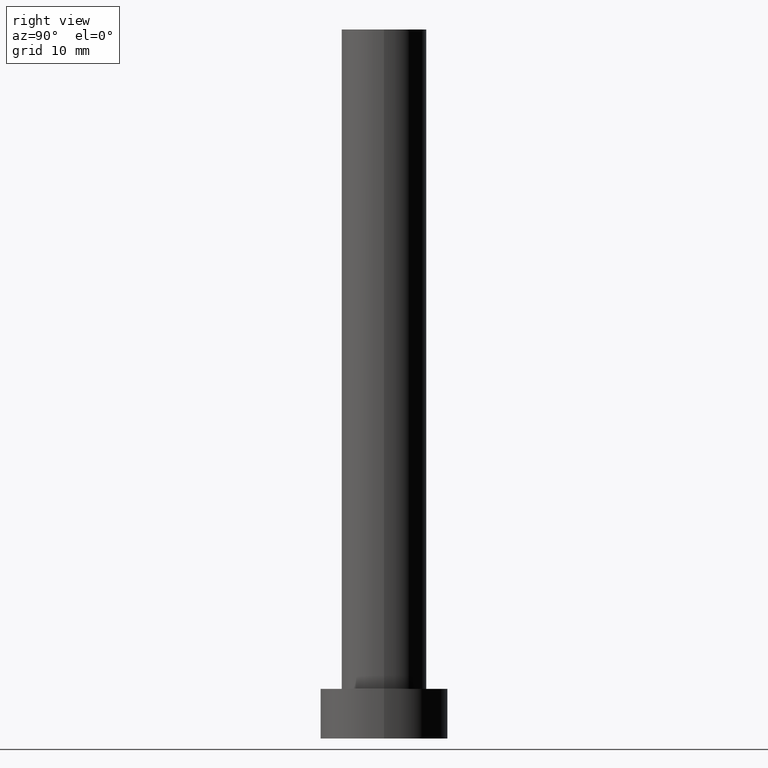
[diagram: clean part render]
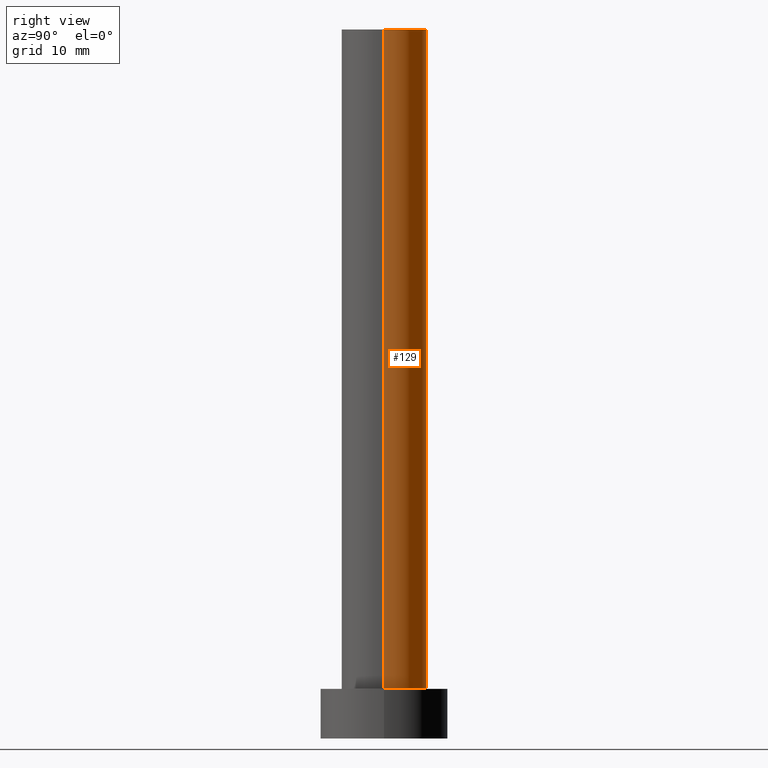
[diagram: same view with one face highlighted and labeled with its STEP entity id]
A machine part, right view. The second image highlights one B-rep face of the part: STEP entity #129.
In plain terms, the highlighted cylindrical surface (partial cylindrical patch) has radius 6 mm, axis along (-0, -0, -1).
Its self-contained STEP definition (entity closure, byte-faithful):
#2 = EDGE_LOOP ( 'NONE', ( #39, #7, #182, #8 ) ) ;
#4 = CYLINDRICAL_SURFACE ( 'NONE', #234, 6.000000000000000888 ) ;
#7 = ORIENTED_EDGE ( 'NONE', *, *, #238, .T. ) ;
#8 = ORIENTED_EDGE ( 'NONE', *, *, #66, .F. ) ;
#14 = CARTESIAN_POINT ( 'NONE',  ( -6.000000000000000888, 0.000000000000000000, 7.000000000000000000 ) ) ;
#16 = DIRECTION ( 'NONE',  ( 1.000000000000000000, 0.000000000000000000, 0.000000000000000000 ) ) ;
#24 = DIRECTION ( 'NONE',  ( 0.000000000000000000, 0.000000000000000000, 1.000000000000000000 ) ) ;
#26 = DIRECTION ( 'NONE',  ( -0.000000000000000000, -0.000000000000000000, -1.000000000000000000 ) ) ;
#36 = CARTESIAN_POINT ( 'NONE',  ( 6.000000000000000888, 7.347880794884119736E-16, 100.0000000000000000 ) ) ;
#37 = VERTEX_POINT ( 'NONE', #14 ) ;
#39 = ORIENTED_EDGE ( 'NONE', *, *, #241, .F. ) ;
#41 = LINE ( 'NONE', #249, #43 ) ;
#43 = VECTOR ( 'NONE', #81, 1000.000000000000000 ) ;
#56 = VECTOR ( 'NONE', #67, 1000.000000000000000 ) ;
#57 = CARTESIAN_POINT ( 'NONE',  ( 0.000000000000000000, 0.000000000000000000, 7.000000000000000000 ) ) ;
#61 = CIRCLE ( 'NONE', #178, 6.000000000000000888 ) ;
#66 = EDGE_CURVE ( 'NONE', #223, #37, #150, .T. ) ;
#67 = DIRECTION ( 'NONE',  ( -0.000000000000000000, -0.000000000000000000, -1.000000000000000000 ) ) ;
#71 = VERTEX_POINT ( 'NONE', #36 ) ;
#81 = DIRECTION ( 'NONE',  ( -0.000000000000000000, -0.000000000000000000, -1.000000000000000000 ) ) ;
#99 = DIRECTION ( 'NONE',  ( 1.000000000000000000, 0.000000000000000000, 0.000000000000000000 ) ) ;
#103 = FACE_OUTER_BOUND ( 'NONE', #2, .T. ) ;
#128 = CARTESIAN_POINT ( 'NONE',  ( -6.000000000000000888, 0.000000000000000000, 100.0000000000000000 ) ) ;
#129 = ADVANCED_FACE ( 'NONE', ( #103 ), #4, .T. ) ;
#130 = CIRCLE ( 'NONE', #145, 6.000000000000000888 ) ;
#142 = DIRECTION ( 'NONE',  ( 0.000000000000000000, 0.000000000000000000, 1.000000000000000000 ) ) ;
#145 = AXIS2_PLACEMENT_3D ( 'NONE', #57, #142, #16 ) ;
#150 = LINE ( 'NONE', #128, #56 ) ;
#177 = EDGE_CURVE ( 'NONE', #242, #37, #130, .T. ) ;
#178 = AXIS2_PLACEMENT_3D ( 'NONE', #237, #24, #99 ) ;
#182 = ORIENTED_EDGE ( 'NONE', *, *, #177, .T. ) ;
#199 = CARTESIAN_POINT ( 'NONE',  ( -6.000000000000000888, 0.000000000000000000, 100.0000000000000000 ) ) ;
#216 = CARTESIAN_POINT ( 'NONE',  ( 0.000000000000000000, 0.000000000000000000, 100.0000000000000000 ) ) ;
#223 = VERTEX_POINT ( 'NONE', #199 ) ;
#234 = AXIS2_PLACEMENT_3D ( 'NONE', #216, #26, #255 ) ;
#237 = CARTESIAN_POINT ( 'NONE',  ( 0.000000000000000000, 0.000000000000000000, 100.0000000000000000 ) ) ;
#238 = EDGE_CURVE ( 'NONE', #71, #242, #41, .T. ) ;
#241 = EDGE_CURVE ( 'NONE', #71, #223, #61, .T. ) ;
#242 = VERTEX_POINT ( 'NONE', #252 ) ;
#249 = CARTESIAN_POINT ( 'NONE',  ( 6.000000000000000888, 7.347880794884119736E-16, 100.0000000000000000 ) ) ;
#252 = CARTESIAN_POINT ( 'NONE',  ( 6.000000000000000888, 7.347880794884119736E-16, 7.000000000000000000 ) ) ;
#255 = DIRECTION ( 'NONE',  ( -1.000000000000000000, 0.000000000000000000, 0.000000000000000000 ) ) ;